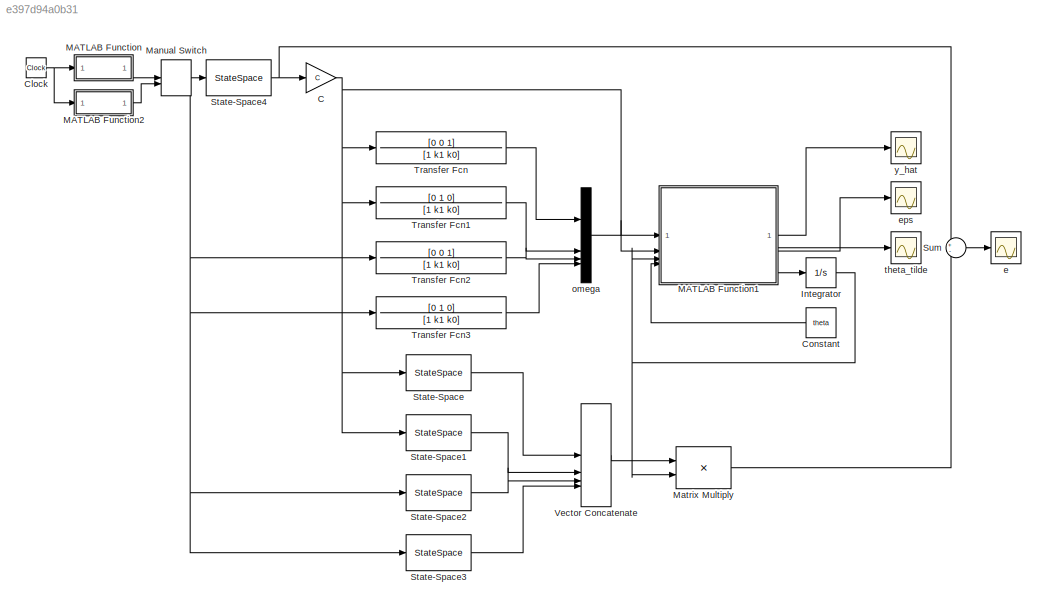
MODEL slx_e397d94a0b31
KIND model
CONFIG AbsTol = auto
CONFIG EnableMultiTasking = off
CONFIG FixedStep = 1e-3
CONFIG InitFcn = k0=16;\nk1=8;\na0=5;\na1=1;\nb0=9;\nb1=3;\ntheta=[k0-a0;k1-a1;b0;b1];\nA0=[-k1 1; -k0 0];\nA=[-a1 1; -a0 0];\nb=[b1;b0];\nC=[1 0];\nD=[0;0];
CONFIG MaxStep = auto
CONFIG MinStep = auto
CONFIG RelTol = 1e-3
CONFIG SampleTimeConstraint = Unconstrained
CONFIG SolverName = FixedStepAuto
CONFIG StartTime = 0.0
CONFIG StopTime = 20.0
BLOCK [Gain] C
  Gain = C
  Multiplication = Matrix(K*u)
BLOCK [Clock] Clock
BLOCK [Constant] Constant
  NameLocation = top
  Value = theta
  VectorParams1D = off
BLOCK [Integrator] Integrator
  InitialCondition = [0;0;0;0]
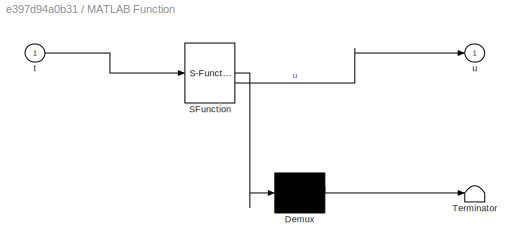
BLOCK [SubSystem] MATLAB Function
  ErrorFcn = Stateflow.Translate.translate
  PermitHierarchicalResolution = ExplicitOnly
  SFBlockType = MATLAB Function
  TreatAsAtomicUnit = on
BLOCK [Demux] MATLAB Function/ Demux 
  Outputs = 1
BLOCK [S-Function] MATLAB Function/ SFunction 
  EnableBusSupport = on
  FunctionName = sf_sfun
  PortCounts = [1 2]
  SFcnIsStateOwnerBlock = off
  SFunctionDeploymentMode = off
  Tag = Stateflow S-Function 2
BLOCK [Terminator] MATLAB Function/ Terminator 
BLOCK [Inport] MATLAB Function/t
BLOCK [Outport] MATLAB Function/u
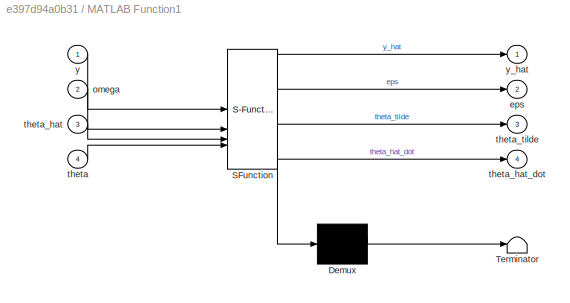
BLOCK [SubSystem] MATLAB Function1
  ErrorFcn = Stateflow.Translate.translate
  PermitHierarchicalResolution = ExplicitOnly
  SFBlockType = MATLAB Function
  TreatAsAtomicUnit = on
BLOCK [Demux] MATLAB Function1/ Demux 
  Outputs = 1
BLOCK [S-Function] MATLAB Function1/ SFunction 
  EnableBusSupport = on
  FunctionName = sf_sfun
  PortCounts = [4 5]
  SFcnIsStateOwnerBlock = off
  SFunctionDeploymentMode = off
  Tag = Stateflow S-Function 1
BLOCK [Terminator] MATLAB Function1/ Terminator 
BLOCK [Outport] MATLAB Function1/eps
  Port = 2
BLOCK [Inport] MATLAB Function1/omega
  Port = 2
BLOCK [Inport] MATLAB Function1/theta
  Port = 4
BLOCK [Inport] MATLAB Function1/theta_hat
  Port = 3
BLOCK [Outport] MATLAB Function1/theta_hat_dot
  Port = 4
BLOCK [Outport] MATLAB Function1/theta_tilde
  Port = 3
BLOCK [Inport] MATLAB Function1/y
BLOCK [Outport] MATLAB Function1/y_hat
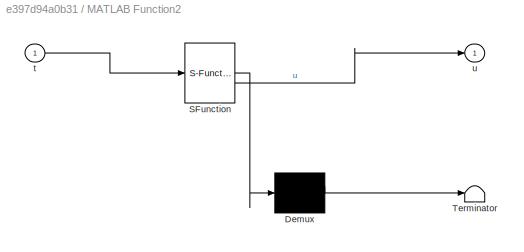
BLOCK [SubSystem] MATLAB Function2
  ErrorFcn = Stateflow.Translate.translate
  PermitHierarchicalResolution = ExplicitOnly
  SFBlockType = MATLAB Function
  TreatAsAtomicUnit = on
BLOCK [Demux] MATLAB Function2/ Demux 
  Outputs = 1
BLOCK [S-Function] MATLAB Function2/ SFunction 
  EnableBusSupport = on
  FunctionName = sf_sfun
  PortCounts = [1 2]
  SFcnIsStateOwnerBlock = off
  SFunctionDeploymentMode = off
  Tag = Stateflow S-Function 3
BLOCK [Terminator] MATLAB Function2/ Terminator 
BLOCK [Inport] MATLAB Function2/t
BLOCK [Outport] MATLAB Function2/u
BLOCK [ManualSwitch] Manual Switch
BLOCK [Product] Matrix Multiply
  Multiplication = Matrix(*)
BLOCK [StateSpace] State-Space
  A = A0
  B = [0;1]
  C = eye(2)
  D = [0;0]
  InitialCondition = [0;0];
BLOCK [StateSpace] State-Space1
  A = A0
  B = [1;0]
  C = eye(2)
  D = [0;0]
  InitialCondition = [0;0];
BLOCK [StateSpace] State-Space2
  A = A0
  B = [0;1]
  C = eye(2)
  D = [0;0]
  InitialCondition = [0;0];
BLOCK [StateSpace] State-Space3
  A = A0
  B = [1;0]
  C = eye(2)
  D = [0;0]
  InitialCondition = [0;0];
BLOCK [StateSpace] State-Space4
  A = A
  B = b
  C = eye(2)
  D = D
  InitialCondition = [0;0];
BLOCK [Sum] Sum
  Inputs = +-
BLOCK [TransferFcn] Transfer Fcn
  Denominator = [1 k1 k0]
  Numerator = [0 0 1]
BLOCK [TransferFcn] Transfer Fcn1
  Denominator = [1 k1 k0]
  Numerator = [0 1 0]
BLOCK [TransferFcn] Transfer Fcn2
  Denominator = [1 k1 k0]
  Numerator = [0 0 1]
BLOCK [TransferFcn] Transfer Fcn3
  Denominator = [1 k1 k0]
  Numerator = [0 1 0]
BLOCK [Concatenate] Vector Concatenate
  ConcatenateDimension = 2
  Mode = Multidimensional array
  NumInputs = 4
BLOCK [Scope] e
  Floating = off
  NumInputPorts = 1
  ScopeSpecificationString = Simulink.scopes.TimeScopeBlockCfg('CurrentConfiguration', extmgr.ConfigurationSet(extmgr.Configuration('Core','General UI',true,'FigureColor',[1 1 1]),extmgr.Configuration('Core','Source UI',true),extmgr.Configuration('Sources','WiredSimulink',true,'DataLoggingVariableName','ScopeData3'),extmgr.Configuration('Visuals','Time Domain',true,'SerializedDisplays',{struct('MinYLimReal','-24.47022','MaxYL...<+2346ch>
BLOCK [Scope] eps
  Floating = off
  NameLocation = right
  NumInputPorts = 1
  ScopeSpecificationString = Simulink.scopes.TimeScopeBlockCfg('CurrentConfiguration', extmgr.ConfigurationSet(extmgr.Configuration('Core','General UI',true,'FigureColor',[1 1 1]),extmgr.Configuration('Core','Source UI',true),extmgr.Configuration('Sources','WiredSimulink',true,'DataLoggingVariableName','ScopeData2'),extmgr.Configuration('Visuals','Time Domain',true,'SerializedDisplays',{struct('MinYLimReal','-1.35855','MaxYLi...<+2396ch>
BLOCK [Mux] omega
  DisplayOption = bar
BLOCK [Scope] theta_tilde
  Floating = off
  NumInputPorts = 1
  ScopeSpecificationString = Simulink.scopes.TimeScopeBlockCfg('CurrentConfiguration', extmgr.ConfigurationSet(extmgr.Configuration('Core','General UI',true,'FigureColor',[1 1 1]),extmgr.Configuration('Core','Source UI',true),extmgr.Configuration('Sources','WiredSimulink',true,'DataLoggingVariableName','ScopeData1'),extmgr.Configuration('Visuals','Time Domain',true,'SerializedDisplays',{struct('MinYLimReal','-6.7485','MaxYLim...<+2523ch>
BLOCK [Scope] y_hat
  Floating = off
  NameLocation = right
  NumInputPorts = 1
  ScopeSpecificationString = Simulink.scopes.TimeScopeBlockCfg('CurrentConfiguration', extmgr.ConfigurationSet(extmgr.Configuration('Core','General UI',true,'FigureColor',[1 1 1]),extmgr.Configuration('Core','Source UI',true),extmgr.Configuration('Sources','WiredSimulink',true),extmgr.Configuration('Visuals','Time Domain',true,'SerializedDisplays',{struct('MinYLimReal','-28.84186','MaxYLimReal','28.89238','YLabelReal','y(t)',...<+2222ch>
NET C:1 -> MATLAB Function1:1, State-Space1:1, State-Space:1, Transfer Fcn1:1, Transfer Fcn:1
NET Clock:1 -> MATLAB Function2:1, MATLAB Function:1
LINE Constant:1 -> MATLAB Function1:4
NET Integrator:1 -> MATLAB Function1:3, Matrix Multiply:2
LINE MATLAB Function1:1 -> y_hat:1
LINE MATLAB Function1:2 -> eps:1
LINE MATLAB Function1:3 -> theta_tilde:1
LINE MATLAB Function1:4 -> Integrator:1
LINE MATLAB Function2:1 -> Manual Switch:2
LINE MATLAB Function:1 -> Manual Switch:1
NET Manual Switch:1 -> State-Space2:1, State-Space3:1, State-Space4:1, Transfer Fcn2:1, Transfer Fcn3:1
LINE Matrix Multiply:1 -> Sum:2
LINE State-Space1:1 -> Vector Concatenate:2
LINE State-Space2:1 -> Vector Concatenate:3
LINE State-Space3:1 -> Vector Concatenate:4
NET State-Space4:1 -> C:1, Sum:1
LINE State-Space:1 -> Vector Concatenate:1
LINE Sum:1 -> e:1
LINE Transfer Fcn1:1 -> omega:2
LINE Transfer Fcn2:1 -> omega:3
LINE Transfer Fcn3:1 -> omega:4
LINE Transfer Fcn:1 -> omega:1
LINE Vector Concatenate:1 -> Matrix Multiply:1
LINE omega:1 -> MATLAB Function1:2
note: NET lines group one-source signal fan-out (src -> all destinations, sorted); 1:1 wires keep LINE
CHART MATLAB Function1 states=1 transitions=1
  STATE_LABEL 'eML_blk_kernel()'
  STATE_LABEL "SCRIPT:\nfunction [y_hat, eps, theta_tilde, theta_hat_dot] = fcn(y, omega, theta_hat, theta)\ngamma=1;\ny_hat = theta_hat'*omega;\neps = y-y_hat;\ntheta_tilde = theta-theta_hat;\ntheta_hat_dot = gamma*omega*eps;\n\n"
CHART MATLAB Function states=1 transitions=1
  STATE_LABEL 'eML_blk_kernel()'
  STATE_LABEL 'SCRIPT:\nfunction u = fcn(t)\n\nu = 10*sin(t);\n'
CHART MATLAB Function2 states=1 transitions=1
  STATE_LABEL 'eML_blk_kernel()'
  STATE_LABEL 'SCRIPT:\nfunction u = fcn(t)\n\nu = 10*sin(t)+5*cos(2*t)+4*cos(4*t)+3*cos(8*t);\n'
CHART  states=0 transitions=0
CHART  states=0 transitions=0
CHART  states=0 transitions=0
